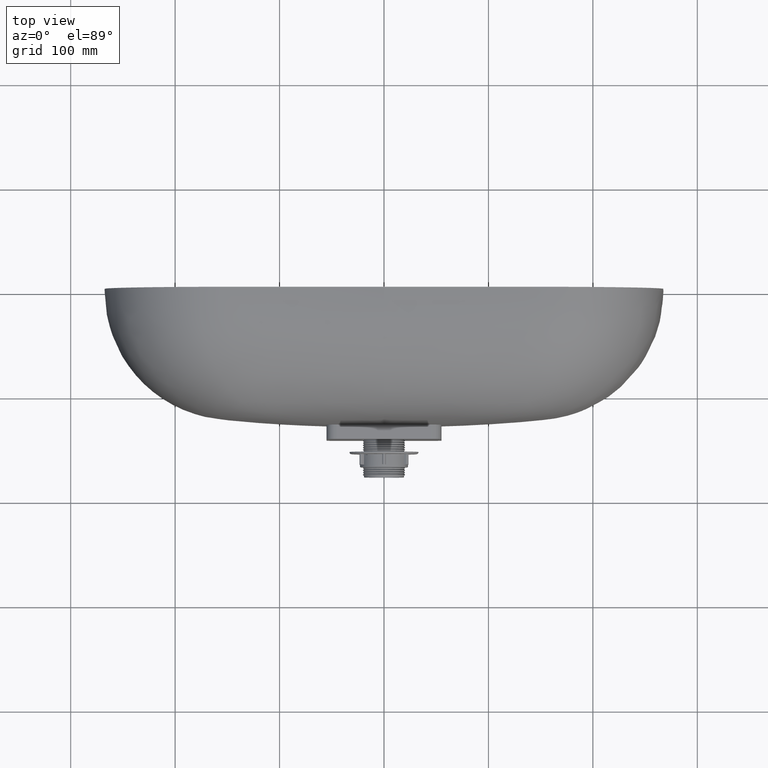
[diagram: clean part render]
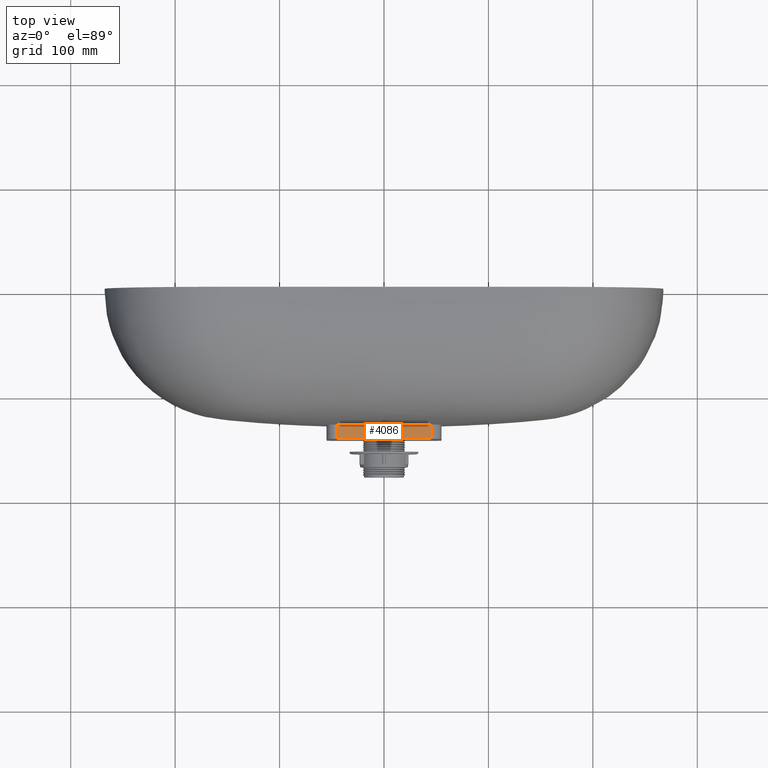
[diagram: same view with one face highlighted and labeled with its STEP entity id]
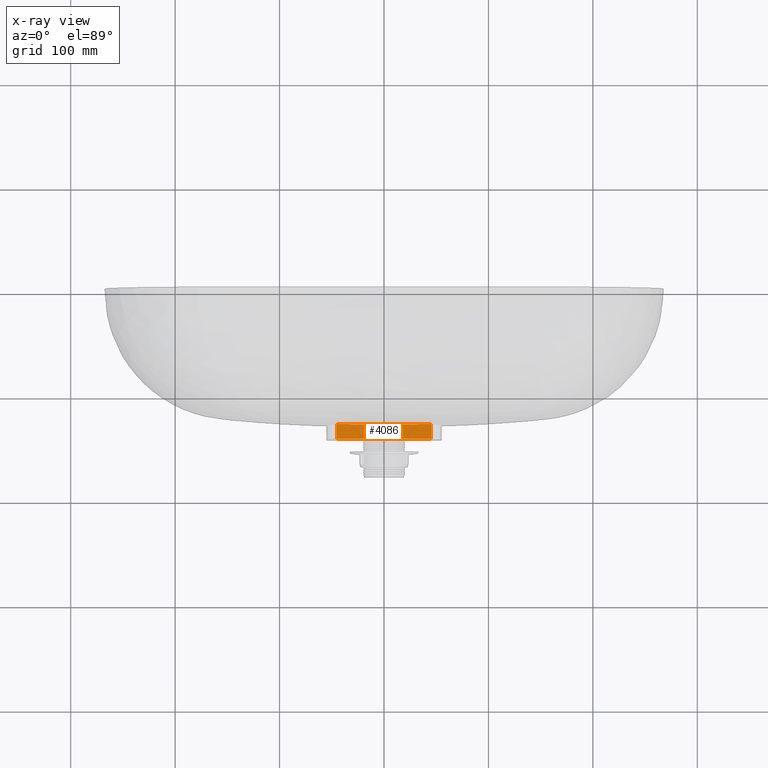
[diagram: x-ray of the same camera — body ghosted, the highlighted face saturated]
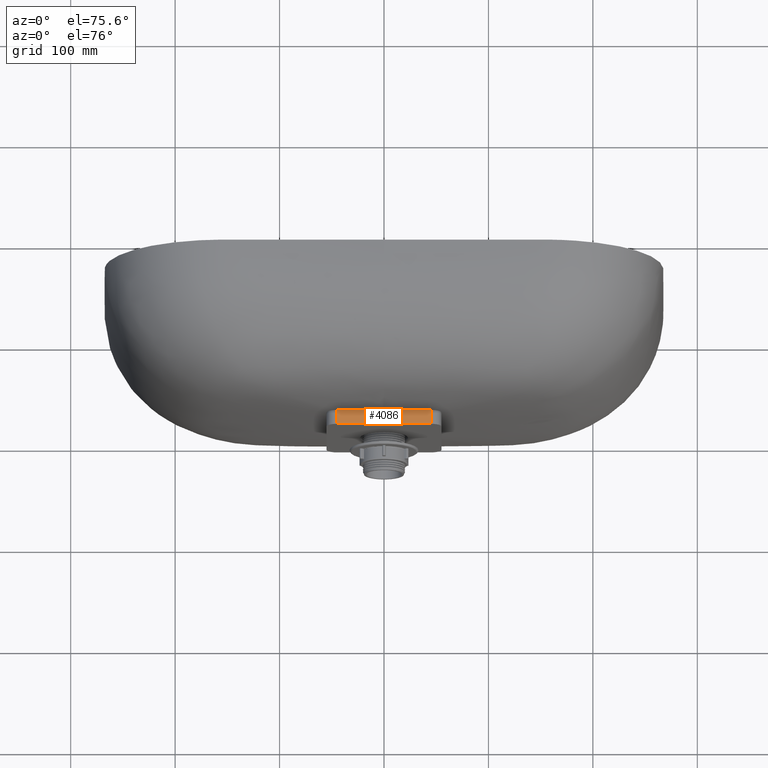
[diagram: same view with one face highlighted and labeled with its STEP entity id]
A machine part, top view. The second image highlights one B-rep face of the part: STEP entity #4086.
The next image is the same camera in x-ray: the body ghosted, the highlighted face saturated — about 0% of this face is hidden behind the body in this view.
A second angle (auxiliary view) of the same face is appended — the face is thin or edge-on in the first view.
In plain terms, the highlighted planar face has unit normal (-0, 0, -1).
Its self-contained STEP definition (entity closure, byte-faithful):
#38 = VERTEX_POINT ( 'NONE', #6426 ) ;
#74 = LINE ( 'NONE', #9132, #3008 ) ;
#579 = CARTESIAN_POINT ( 'NONE',  ( 30.00024972639035800, -129.1072753348314800, 55.00000000000000700 ) ) ;
#974 = CARTESIAN_POINT ( 'NONE',  ( -7.500160252375297700, -128.9769337252816700, 55.00000000000002100 ) ) ;
#1019 = ORIENTED_EDGE ( 'NONE', *, *, #10072, .T. ) ;
#1340 = ORIENTED_EDGE ( 'NONE', *, *, #10420, .F. ) ;
#1470 = DIRECTION ( 'NONE',  ( -0.0000000000000000000, -1.000000000000000000, -0.0000000000000000000 ) ) ;
#1699 = CARTESIAN_POINT ( 'NONE',  ( 15.00028867051219100, -129.0064271138028600, 54.99999999999995700 ) ) ;
#2098 = CARTESIAN_POINT ( 'NONE',  ( -26.25027867558259200, -129.0785650201129300, 54.99999999999998600 ) ) ;
#2214 = PLANE ( 'NONE',  #13604 ) ;
#2707 = DIRECTION ( 'NONE',  ( -1.000000000000000000, 0.0000000000000000000, 3.083952846180991300E-016 ) ) ;
#2813 = CARTESIAN_POINT ( 'NONE',  ( 2.656065882023828700E-015, -128.9769337252816400, 54.99999999999996400 ) ) ;
#3008 = VECTOR ( 'NONE', #1470, 1000.000000000000000 ) ;
#3167 = VERTEX_POINT ( 'NONE', #10770 ) ;
#3207 = CARTESIAN_POINT ( 'NONE',  ( -35.62516368980956800, -129.1552879051129100, 54.99999999999995700 ) ) ;
#3317 = DIRECTION ( 'NONE',  ( -3.083952846180990800E-016, 0.0000000000000000000, -1.000000000000000000 ) ) ;
#3411 = LINE ( 'NONE', #8149, #5975 ) ;
#3510 = ORIENTED_EDGE ( 'NONE', *, *, #6145, .F. ) ;
#3665 = B_SPLINE_CURVE_WITH_KNOTS ( 'NONE', 3,
 ( #10407, #8204, #4961, #12601, #6064, #13688, #7155, #579, #8254, #1699, #9355, #2813 ),
 .UNSPECIFIED., .F., .F.,
 ( 4, 2, 2, 2, 2, 4 ),
 ( 2.012470640792535400E-015, 0.002812558915659014900, 0.005625117831316017600, 0.01125023566263004200, 0.02250047132525809200, 0.04500094265051419300 ),
 .UNSPECIFIED. ) ;
#4086 = ADVANCED_FACE ( 'NONE', ( #4306 ), #2214, .F. ) ;
#4292 = CARTESIAN_POINT ( 'NONE',  ( -40.31256975161759500, -129.1977202011067900, 55.00000000000000700 ) ) ;
#4306 = FACE_OUTER_BOUND ( 'NONE', #9561, .T. ) ;
#4377 = ORIENTED_EDGE ( 'NONE', *, *, #5609, .T. ) ;
#4961 = CARTESIAN_POINT ( 'NONE',  ( 43.12502182576986300, -129.2220626401910400, 54.99999999999998600 ) ) ;
#5220 = CARTESIAN_POINT ( 'NONE',  ( 45.00000000000000700, 500000.0000000000600, 54.99999999999996400 ) ) ;
#5405 = CARTESIAN_POINT ( 'NONE',  ( -43.12502267576702100, -129.2220626473614400, 54.99999999999996400 ) ) ;
#5599 = B_SPLINE_CURVE_WITH_KNOTS ( 'NONE', 3,
 ( #7543, #974, #8650, #2098, #9751, #3207, #10863, #4292, #11960, #5405, #13037, #6497 ),
 .UNSPECIFIED., .F., .F.,
 ( 4, 2, 2, 2, 2, 4 ),
 ( 0.04500094265051419300, 0.06750143135930045100, 0.07875167571369359700, 0.08437679789089014300, 0.08718935897948842900, 0.09000192006808670200 ),
 .UNSPECIFIED. ) ;
#5609 = EDGE_CURVE ( 'NONE', #10302, #38, #5599, .T. ) ;
#5975 = VECTOR ( 'NONE', #2707, 1000.000000000000000 ) ;
#6064 = CARTESIAN_POINT ( 'NONE',  ( 40.31256824864947700, -129.1977201878386800, 54.99999999999993600 ) ) ;
#6145 = EDGE_CURVE ( 'NONE', #11456, #10865, #3411, .T. ) ;
#6426 = CARTESIAN_POINT ( 'NONE',  ( -44.99999999999997900, -129.2372436400910400, 55.00000000000000000 ) ) ;
#6497 = CARTESIAN_POINT ( 'NONE',  ( -44.99999999999997900, -129.2372436400910400, 55.00000000000000000 ) ) ;
#7074 = CARTESIAN_POINT ( 'NONE',  ( -45.00000000000000000, -143.0000000000000300, 55.00000000000000000 ) ) ;
#7155 = CARTESIAN_POINT ( 'NONE',  ( 35.62516167579362000, -129.1552878872825500, 55.00000000000000000 ) ) ;
#7406 = DIRECTION ( 'NONE',  ( -0.0000000000000000000, -1.000000000000000000, -0.0000000000000000000 ) ) ;
#7543 = CARTESIAN_POINT ( 'NONE',  ( 2.656065882023828700E-015, -128.9769337252816400, 54.99999999999996400 ) ) ;
#7663 = CARTESIAN_POINT ( 'NONE',  ( 45.00000000000000700, 500000.0000000000600, 54.99999999999996400 ) ) ;
#7950 = VECTOR ( 'NONE', #7406, 1000.000000000000000 ) ;
#8149 = CARTESIAN_POINT ( 'NONE',  ( 45.00000000000000700, -143.0000000000000300, 54.99999999999996400 ) ) ;
#8204 = CARTESIAN_POINT ( 'NONE',  ( 44.06249464366233300, -129.2315208512822600, 54.99999999999998600 ) ) ;
#8254 = CARTESIAN_POINT ( 'NONE',  ( 26.25027730813939500, -129.0785650126007900, 54.99999999999997200 ) ) ;
#8650 = CARTESIAN_POINT ( 'NONE',  ( -15.00028138680659300, -129.0064270696102800, 54.99999999999999300 ) ) ;
#9132 = CARTESIAN_POINT ( 'NONE',  ( -44.99999999999997900, 500000.0000000000600, 55.00000000000000000 ) ) ;
#9355 = CARTESIAN_POINT ( 'NONE',  ( 7.500154457867287400, -128.9769337252816700, 55.00000000000002100 ) ) ;
#9561 = EDGE_LOOP ( 'NONE', ( #1340, #12248, #4377, #1019, #3510 ) ) ;
#9751 = CARTESIAN_POINT ( 'NONE',  ( -30.00025225111501800, -129.1072753551028700, 54.99999999999998600 ) ) ;
#10072 = EDGE_CURVE ( 'NONE', #38, #10865, #74, .T. ) ;
#10302 = VERTEX_POINT ( 'NONE', #13657 ) ;
#10407 = CARTESIAN_POINT ( 'NONE',  ( 45.00000000000000700, -129.2372436400910400, 54.99999999999996400 ) ) ;
#10420 = EDGE_CURVE ( 'NONE', #3167, #11456, #10873, .T. ) ;
#10770 = CARTESIAN_POINT ( 'NONE',  ( 45.00000000000000700, -129.2372436400910400, 54.99999999999996400 ) ) ;
#10863 = CARTESIAN_POINT ( 'NONE',  ( -37.50012383263438000, -129.1725352615532600, 55.00000000000001400 ) ) ;
#10865 = VERTEX_POINT ( 'NONE', #7074 ) ;
#10873 = LINE ( 'NONE', #5220, #7950 ) ;
#10975 = DIRECTION ( 'NONE',  ( -1.000000000000000000, 0.0000000000000000000, 3.083952846180990800E-016 ) ) ;
#11456 = VERTEX_POINT ( 'NONE', #13461 ) ;
#11960 = CARTESIAN_POINT ( 'NONE',  ( -41.25005310368168700, -129.2059493237994400, 54.99999999999996400 ) ) ;
#12248 = ORIENTED_EDGE ( 'NONE', *, *, #12847, .T. ) ;
#12601 = CARTESIAN_POINT ( 'NONE',  ( 41.25005177284624800, -129.2059493122280600, 54.99999999999999300 ) ) ;
#12847 = EDGE_CURVE ( 'NONE', #3167, #10302, #3665, .T. ) ;
#13037 = CARTESIAN_POINT ( 'NONE',  ( -44.06249580820504300, -129.2315208583937900, 55.00000000000003600 ) ) ;
#13461 = CARTESIAN_POINT ( 'NONE',  ( 45.00000000000000700, -143.0000000000000300, 54.99999999999996400 ) ) ;
#13604 = AXIS2_PLACEMENT_3D ( 'NONE', #7663, #3317, #10975 ) ;
#13657 = CARTESIAN_POINT ( 'NONE',  ( 2.656065882023828700E-015, -128.9769337252816400, 54.99999999999996400 ) ) ;
#13688 = CARTESIAN_POINT ( 'NONE',  ( 37.50012201028135900, -129.1725352448529200, 54.99999999999995700 ) ) ;